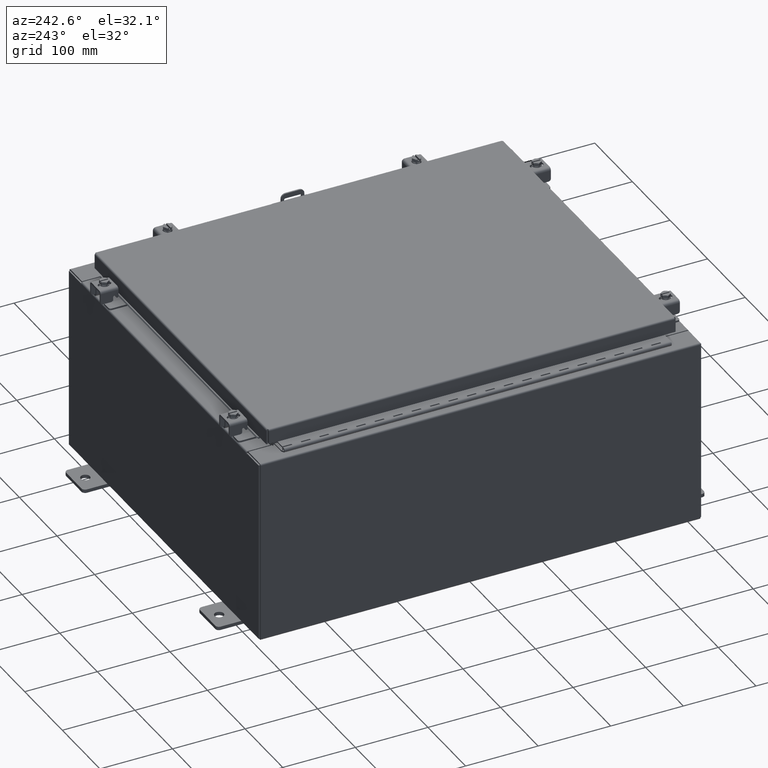
[diagram: clean part render]
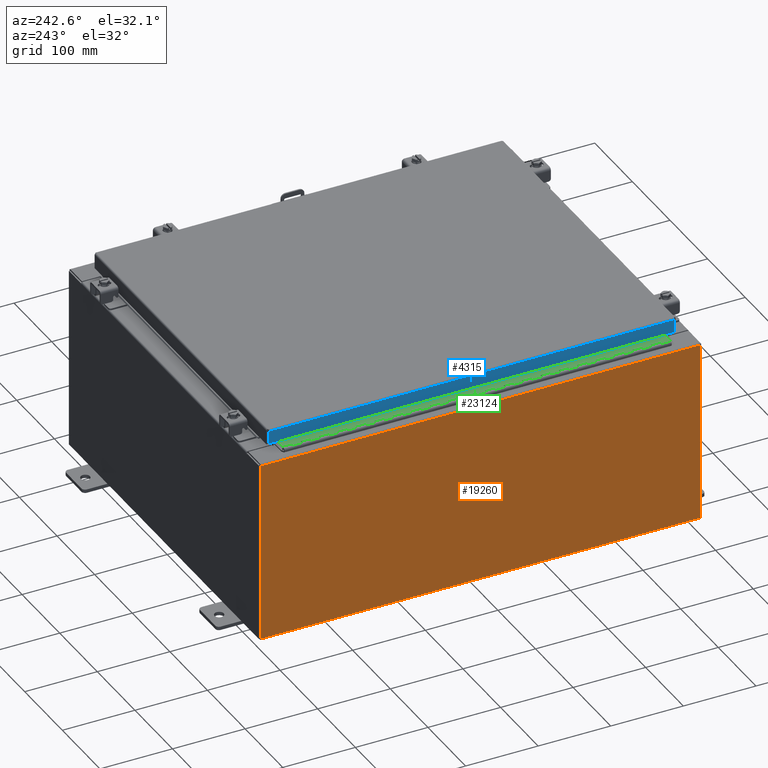
[diagram: same view with three faces highlighted in distinct colors, each labeled with its STEP entity id]
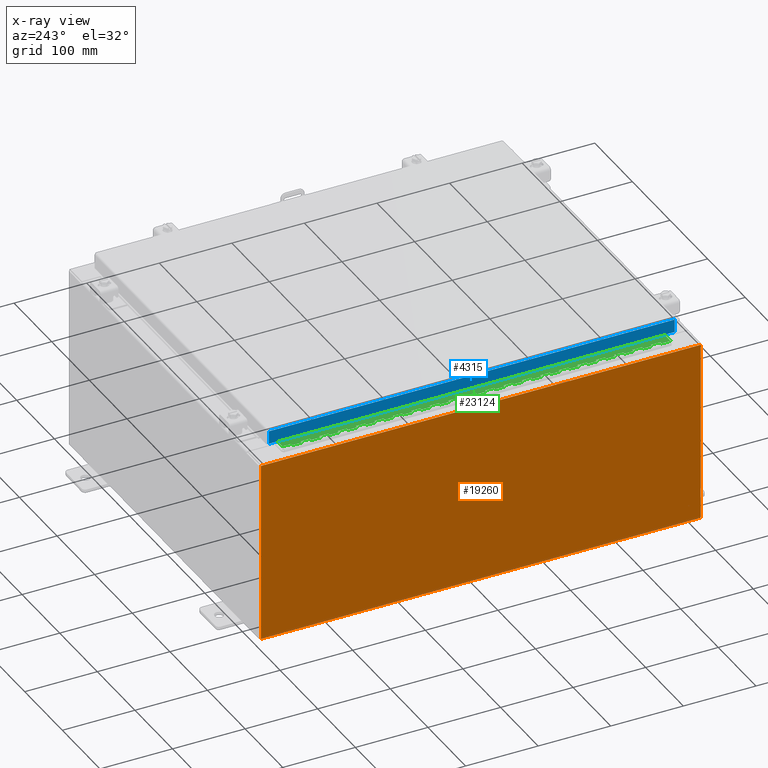
[diagram: x-ray of the same camera — body ghosted, the three highlighted faces saturated]
A machine part, auxiliary view with three faces highlighted in distinct colors.
The next image is the same camera in x-ray (body ghosted, the three faces saturated) — at least one of them is partly hidden behind the body in this view.
Their STEP definitions:

[orange] entity #19260 — the highlighted planar face has unit normal (1, 0, 0).
#1258 = CARTESIAN_POINT ( 'NONE',  ( -10.00000000000000000, -11.92530000000000000, -3.549164226462045900E-014 ) ) ;
#1472 = DIRECTION ( 'NONE',  ( -3.523082860860888200E-015, 0.0000000000000000000, 1.000000000000000000 ) ) ;
#2577 = FACE_OUTER_BOUND ( 'NONE', #23038, .T. ) ;
#2737 = VECTOR ( 'NONE', #22383, 39.37007874015748100 ) ;
#3236 = VECTOR ( 'NONE', #1472, 39.37007874015748100 ) ;
#3730 = ORIENTED_EDGE ( 'NONE', *, *, #32067, .F. ) ;
#4269 = DIRECTION ( 'NONE',  ( -0.0000000000000000000, 1.000000000000000000, -0.0000000000000000000 ) ) ;
#5770 = VERTEX_POINT ( 'NONE', #28099 ) ;
#5843 = EDGE_CURVE ( 'NONE', #5770, #23239, #14281, .T. ) ;
#6471 = VERTEX_POINT ( 'NONE', #30135 ) ;
#7602 = VECTOR ( 'NONE', #24441, 39.37007874015748100 ) ;
#11703 = EDGE_CURVE ( 'NONE', #6471, #23840, #16610, .T. ) ;
#13349 = AXIS2_PLACEMENT_3D ( 'NONE', #17112, #16675, #16569 ) ;
#13563 = ORIENTED_EDGE ( 'NONE', *, *, #11703, .T. ) ;
#13941 = ORIENTED_EDGE ( 'NONE', *, *, #16671, .T. ) ;
#14281 = LINE ( 'NONE', #25664, #7602 ) ;
#14903 = CARTESIAN_POINT ( 'NONE',  ( -10.00000000000003600, -11.92529999999999500, 9.837599999999998300 ) ) ;
#15176 = CARTESIAN_POINT ( 'NONE',  ( -10.00000000000000000, 11.92530000000000000, 0.01299999999999984300 ) ) ;
#16569 = DIRECTION ( 'NONE',  ( 3.523082860860887800E-015, 0.0000000000000000000, -1.000000000000000000 ) ) ;
#16610 = LINE ( 'NONE', #1258, #3236 ) ;
#16671 = EDGE_CURVE ( 'NONE', #23840, #5770, #22803, .T. ) ;
#16675 = DIRECTION ( 'NONE',  ( 1.000000000000000000, 0.0000000000000000000, 3.523082860860887800E-015 ) ) ;
#16786 = CARTESIAN_POINT ( 'NONE',  ( -10.00000000000000000, 11.92530000000000000, 0.01299999999999984700 ) ) ;
#16850 = PLANE ( 'NONE',  #13349 ) ;
#17112 = CARTESIAN_POINT ( 'NONE',  ( -10.00000000000000000, 0.0000000000000000000, -3.549164226462045900E-014 ) ) ;
#19260 = ADVANCED_FACE ( 'NONE', ( #2577 ), #16850, .F. ) ;
#19595 = VECTOR ( 'NONE', #4269, 39.37007874015748100 ) ;
#22383 = DIRECTION ( 'NONE',  ( 0.0000000000000000000, 1.000000000000000000, 0.0000000000000000000 ) ) ;
#22803 = LINE ( 'NONE', #23816, #2737 ) ;
#23038 = EDGE_LOOP ( 'NONE', ( #13941, #28827, #3730, #13563 ) ) ;
#23239 = VERTEX_POINT ( 'NONE', #15176 ) ;
#23816 = CARTESIAN_POINT ( 'NONE',  ( -10.00000000000003600, -11.92530000000000000, 9.837599999999998300 ) ) ;
#23840 = VERTEX_POINT ( 'NONE', #14903 ) ;
#24441 = DIRECTION ( 'NONE',  ( 3.523082860860888200E-015, 0.0000000000000000000, -1.000000000000000000 ) ) ;
#25664 = CARTESIAN_POINT ( 'NONE',  ( -10.00000000000000000, 11.92530000000000000, -3.549164226462045900E-014 ) ) ;
#27032 = LINE ( 'NONE', #16786, #19595 ) ;
#28099 = CARTESIAN_POINT ( 'NONE',  ( -10.00000000000003600, 11.92530000000000000, 9.837599999999998300 ) ) ;
#28827 = ORIENTED_EDGE ( 'NONE', *, *, #5843, .T. ) ;
#30135 = CARTESIAN_POINT ( 'NONE',  ( -10.00000000000000000, -11.92529999999999800, 0.01299999999999984700 ) ) ;
#32067 = EDGE_CURVE ( 'NONE', #6471, #23239, #27032, .T. ) ;

[blue] entity #4315 — the highlighted planar face has unit normal (1, 0, -0).
#1695 = AXIS2_PLACEMENT_3D ( 'NONE', #31860, #32344, #24528 ) ;
#2757 = EDGE_LOOP ( 'NONE', ( #9431, #4475, #16689, #14090 ) ) ;
#4105 = VERTEX_POINT ( 'NONE', #18738 ) ;
#4315 = ADVANCED_FACE ( 'NONE', ( #10847 ), #27398, .F. ) ;
#4475 = ORIENTED_EDGE ( 'NONE', *, *, #28147, .T. ) ;
#5121 = VERTEX_POINT ( 'NONE', #11246 ) ;
#5714 = CARTESIAN_POINT ( 'NONE',  ( -9.078000000000001200, -11.00515786437626700, -0.7949999999999996000 ) ) ;
#5996 = VECTOR ( 'NONE', #12946, 39.37007874015748100 ) ;
#6316 = DIRECTION ( 'NONE',  ( -3.034122441942816500E-015, 6.982962677686265900E-015, -1.000000000000000000 ) ) ;
#6682 = VECTOR ( 'NONE', #16065, 39.37007874015748100 ) ;
#6786 = LINE ( 'NONE', #10398, #5996 ) ;
#9431 = ORIENTED_EDGE ( 'NONE', *, *, #24596, .F. ) ;
#10063 = VERTEX_POINT ( 'NONE', #5714 ) ;
#10398 = CARTESIAN_POINT ( 'NONE',  ( -9.078000000000001200, -11.09400000000000100, -0.7949999999999997100 ) ) ;
#10847 = FACE_OUTER_BOUND ( 'NONE', #2757, .T. ) ;
#11246 = CARTESIAN_POINT ( 'NONE',  ( -9.078000000000001200, 11.00515786437627100, -0.7949999999999969300 ) ) ;
#12015 = LINE ( 'NONE', #25802, #25360 ) ;
#12946 = DIRECTION ( 'NONE',  ( 4.379057701015054300E-047, 1.000000000000000000, 1.231227687788112300E-016 ) ) ;
#13196 = DIRECTION ( 'NONE',  ( 3.735695558659274900E-031, -1.000000000000000000, -1.101212895818006000E-045 ) ) ;
#14090 = ORIENTED_EDGE ( 'NONE', *, *, #22340, .F. ) ;
#16065 = DIRECTION ( 'NONE',  ( -3.034122441942816500E-015, 6.982962677686265900E-015, -1.000000000000000000 ) ) ;
#16305 = CARTESIAN_POINT ( 'NONE',  ( -9.077999999999999400, -11.00515786437627100, -0.07469999999999976700 ) ) ;
#16689 = ORIENTED_EDGE ( 'NONE', *, *, #22075, .F. ) ;
#18738 = CARTESIAN_POINT ( 'NONE',  ( -9.077999999999999400, 11.00515786437626900, -0.08770000000000004200 ) ) ;
#20502 = LINE ( 'NONE', #16305, #31433 ) ;
#21005 = CARTESIAN_POINT ( 'NONE',  ( -9.077999999999999400, -11.00515786437626900, -0.08770000000000007000 ) ) ;
#22075 = EDGE_CURVE ( 'NONE', #10063, #5121, #6786, .T. ) ;
#22340 = EDGE_CURVE ( 'NONE', #22784, #10063, #20502, .T. ) ;
#22784 = VERTEX_POINT ( 'NONE', #21005 ) ;
#24528 = DIRECTION ( 'NONE',  ( -3.034122441942816500E-015, 0.0000000000000000000, -1.000000000000000000 ) ) ;
#24596 = EDGE_CURVE ( 'NONE', #4105, #22784, #12015, .T. ) ;
#25360 = VECTOR ( 'NONE', #13196, 39.37007874015748100 ) ;
#25802 = CARTESIAN_POINT ( 'NONE',  ( -9.077999999999999400, -11.09400000000000100, -0.08770000000000004200 ) ) ;
#25923 = LINE ( 'NONE', #28531, #6682 ) ;
#27398 = PLANE ( 'NONE',  #1695 ) ;
#28147 = EDGE_CURVE ( 'NONE', #4105, #5121, #25923, .T. ) ;
#28531 = CARTESIAN_POINT ( 'NONE',  ( -9.077999999999999400, 11.00515786437626700, 1.046531838129534400E-013 ) ) ;
#31433 = VECTOR ( 'NONE', #6316, 39.37007874015748100 ) ;
#31860 = CARTESIAN_POINT ( 'NONE',  ( -9.077999999999999400, -3.391264428150889200E-030, 2.780457718396847000E-014 ) ) ;
#32344 = DIRECTION ( 'NONE',  ( 1.000000000000000000, 3.735695558659274400E-031, -3.034122441942816500E-015 ) ) ;

[green] entity #23124 — the highlighted planar face has unit normal (-0, -0, 1).
#37 = CARTESIAN_POINT ( 'NONE',  ( -0.6869999999999978300, 0.6754999999999996600, -8.500000000000000000 ) ) ;
#50 = DIRECTION ( 'NONE',  ( 0.0000000000000000000, -0.0000000000000000000, -1.000000000000000000 ) ) ;
#68 = LINE ( 'NONE', #32048, #12699 ) ;
#144 = ORIENTED_EDGE ( 'NONE', *, *, #31276, .F. ) ;
#206 = VERTEX_POINT ( 'NONE', #7646 ) ;
#235 = CARTESIAN_POINT ( 'NONE',  ( -0.6869999999999982800, 0.5504999999999997700, -7.499999999999999100 ) ) ;
#246 = LINE ( 'NONE', #2981, #12887 ) ;
#406 = ORIENTED_EDGE ( 'NONE', *, *, #29526, .F. ) ;
#410 = VECTOR ( 'NONE', #4825, 39.37007874015748100 ) ;
#422 = VERTEX_POINT ( 'NONE', #27371 ) ;
#449 = VECTOR ( 'NONE', #3675, 39.37007874015748100 ) ;
#467 = ORIENTED_EDGE ( 'NONE', *, *, #6371, .T. ) ;
#476 = LINE ( 'NONE', #5352, #26410 ) ;
#477 = DIRECTION ( 'NONE',  ( -3.389037039080723100E-015, -1.000000000000000000, 0.0000000000000000000 ) ) ;
#478 = VECTOR ( 'NONE', #13331, 39.37007874015748100 ) ;
#505 = CARTESIAN_POINT ( 'NONE',  ( -0.6869999999999973900, 0.8004999999999995500, -6.499999999999999100 ) ) ;
#549 = DIRECTION ( 'NONE',  ( 0.0000000000000000000, -0.0000000000000000000, -1.000000000000000000 ) ) ;
#553 = DIRECTION ( 'NONE',  ( 3.389037039080723100E-015, 1.000000000000000000, -0.0000000000000000000 ) ) ;
#587 = CARTESIAN_POINT ( 'NONE',  ( -0.6869999999999982800, 0.5504999999999997700, -4.500000000000000000 ) ) ;
#681 = CARTESIAN_POINT ( 'NONE',  ( -0.6869999999999982800, 0.5504999999999997700, -14.99999999999999800 ) ) ;
#741 = VECTOR ( 'NONE', #31290, 39.37007874015748100 ) ;
#752 = EDGE_CURVE ( 'NONE', #6285, #4718, #5486, .T. ) ;
#798 = DIRECTION ( 'NONE',  ( -3.389037039080723100E-015, -1.000000000000000000, 0.0000000000000000000 ) ) ;
#836 = VERTEX_POINT ( 'NONE', #8326 ) ;
#848 = ORIENTED_EDGE ( 'NONE', *, *, #20046, .F. ) ;
#856 = ORIENTED_EDGE ( 'NONE', *, *, #22255, .F. ) ;
#894 = VERTEX_POINT ( 'NONE', #5066 ) ;
#941 = EDGE_CURVE ( 'NONE', #18381, #19166, #6649, .T. ) ;
#942 = DIRECTION ( 'NONE',  ( 0.0000000000000000000, -0.0000000000000000000, -1.000000000000000000 ) ) ;
#983 = EDGE_CURVE ( 'NONE', #13320, #16870, #24336, .T. ) ;
#1016 = LINE ( 'NONE', #11303, #20295 ) ;
#1033 = DIRECTION ( 'NONE',  ( 0.0000000000000000000, 0.0000000000000000000, 1.000000000000000000 ) ) ;
#1039 = LINE ( 'NONE', #8945, #32024 ) ;
#1063 = LINE ( 'NONE', #13607, #26230 ) ;
#1253 = LINE ( 'NONE', #13447, #25317 ) ;
#1260 = LINE ( 'NONE', #8252, #478 ) ;
#1264 = CARTESIAN_POINT ( 'NONE',  ( -0.6869999999999978300, 0.6754999999999996600, -11.50000000000000000 ) ) ;
#1435 = VECTOR ( 'NONE', #17290, 39.37007874015748100 ) ;
#1449 = ORIENTED_EDGE ( 'NONE', *, *, #27880, .F. ) ;
#1489 = CARTESIAN_POINT ( 'NONE',  ( -0.6869999999999982800, 0.5504999999999997700, -1.499999999999999800 ) ) ;
#1490 = VECTOR ( 'NONE', #1832, 39.37007874015748100 ) ;
#1540 = VECTOR ( 'NONE', #31229, 39.37007874015748100 ) ;
#1562 = CARTESIAN_POINT ( 'NONE',  ( -0.6869999999999978300, 0.6754999999999996600, -21.00000000000000000 ) ) ;
#1709 = VECTOR ( 'NONE', #16765, 39.37007874015748100 ) ;
#1826 = EDGE_CURVE ( 'NONE', #422, #2860, #6580, .T. ) ;
#1827 = EDGE_CURVE ( 'NONE', #206, #11457, #13268, .T. ) ;
#1832 = DIRECTION ( 'NONE',  ( -3.389037039080723100E-015, -1.000000000000000000, 0.0000000000000000000 ) ) ;
#1923 = CARTESIAN_POINT ( 'NONE',  ( -0.6869999999999978300, 0.6754999999999996600, -21.00000000000000000 ) ) ;
#1970 = ORIENTED_EDGE ( 'NONE', *, *, #3272, .F. ) ;
#2035 = CARTESIAN_POINT ( 'NONE',  ( -0.6869999999999973900, 0.8004999999999995500, -4.500000000000000000 ) ) ;
#2043 = VECTOR ( 'NONE', #27311, 39.37007874015748100 ) ;
#2050 = CARTESIAN_POINT ( 'NONE',  ( -0.6869999999999982800, 0.5504999999999997700, -15.50000000000000000 ) ) ;
#2088 = ORIENTED_EDGE ( 'NONE', *, *, #20352, .F. ) ;
#2124 = EDGE_CURVE ( 'NONE', #22963, #27434, #12088, .T. ) ;
#2220 = CARTESIAN_POINT ( 'NONE',  ( -0.6869999999999978300, 0.6754999999999996600, -9.500000000000000000 ) ) ;
#2223 = LINE ( 'NONE', #3769, #14802 ) ;
#2255 = CARTESIAN_POINT ( 'NONE',  ( -0.6869999999999978300, 0.6754999999999996600, -21.00000000000000000 ) ) ;
#2306 = DIRECTION ( 'NONE',  ( 3.369016658928398200E-015, 1.000000000000000000, 0.0000000000000000000 ) ) ;
#2349 = LINE ( 'NONE', #12903, #8247 ) ;
#2360 = CARTESIAN_POINT ( 'NONE',  ( -0.6869999999999982800, 0.5504999999999997700, -19.50000000000000000 ) ) ;
#2408 = ORIENTED_EDGE ( 'NONE', *, *, #23743, .F. ) ;
#2483 = LINE ( 'NONE', #14971, #21742 ) ;
#2540 = DIRECTION ( 'NONE',  ( -3.389037039080723100E-015, -1.000000000000000000, 0.0000000000000000000 ) ) ;
#2668 = VECTOR ( 'NONE', #18105, 39.37007874015748100 ) ;
#2683 = VERTEX_POINT ( 'NONE', #2220 ) ;
#2697 = DIRECTION ( 'NONE',  ( 3.369016658928398200E-015, 1.000000000000000000, 0.0000000000000000000 ) ) ;
#2749 = EDGE_CURVE ( 'NONE', #29750, #13653, #28186, .T. ) ;
#2814 = VERTEX_POINT ( 'NONE', #37 ) ;
#2860 = VERTEX_POINT ( 'NONE', #6668 ) ;
#2981 = CARTESIAN_POINT ( 'NONE',  ( -0.6870000000000022800, -0.6245000000000003900, 0.0000000000000000000 ) ) ;
#2990 = DIRECTION ( 'NONE',  ( -3.389037039080723100E-015, -1.000000000000000000, 0.0000000000000000000 ) ) ;
#3047 = DIRECTION ( 'NONE',  ( 0.0000000000000000000, -0.0000000000000000000, -1.000000000000000000 ) ) ;
#3049 = CARTESIAN_POINT ( 'NONE',  ( -0.6869999999999978300, 0.6754999999999996600, -17.00000000000000000 ) ) ;
#3116 = DIRECTION ( 'NONE',  ( 0.0000000000000000000, -0.0000000000000000000, -1.000000000000000000 ) ) ;
#3220 = CARTESIAN_POINT ( 'NONE',  ( -0.6869999999999973900, 0.8004999999999995500, -16.00000000000000000 ) ) ;
#3272 = EDGE_CURVE ( 'NONE', #9649, #4046, #20724, .T. ) ;
#3306 = CARTESIAN_POINT ( 'NONE',  ( -0.6869999999999973900, 0.8004999999999995500, -12.49999999999999800 ) ) ;
#3339 = VERTEX_POINT ( 'NONE', #22339 ) ;
#3348 = CARTESIAN_POINT ( 'NONE',  ( -0.6869999999999978300, 0.6754999999999996600, -21.00000000000000000 ) ) ;
#3369 = ORIENTED_EDGE ( 'NONE', *, *, #11308, .T. ) ;
#3447 = VERTEX_POINT ( 'NONE', #25537 ) ;
#3485 = CARTESIAN_POINT ( 'NONE',  ( -0.6869999999999978300, 0.6754999999999996600, -21.00000000000000000 ) ) ;
#3525 = LINE ( 'NONE', #22465, #16100 ) ;
#3626 = VECTOR ( 'NONE', #30694, 39.37007874015748100 ) ;
#3675 = DIRECTION ( 'NONE',  ( 3.389037039080723100E-015, 1.000000000000000000, -0.0000000000000000000 ) ) ;
#3706 = CARTESIAN_POINT ( 'NONE',  ( -0.6869999999999982800, 0.5504999999999997700, -12.49999999999999800 ) ) ;
#3708 = EDGE_CURVE ( 'NONE', #15204, #8475, #2223, .T. ) ;
#3769 = CARTESIAN_POINT ( 'NONE',  ( -0.6869999999999982800, 0.5504999999999997700, -17.50000000000000000 ) ) ;
#3782 = CARTESIAN_POINT ( 'NONE',  ( -0.6869999999999978300, 0.6754999999999996600, -19.50000000000000000 ) ) ;
#3809 = DIRECTION ( 'NONE',  ( 0.0000000000000000000, -0.0000000000000000000, -1.000000000000000000 ) ) ;
#3873 = DIRECTION ( 'NONE',  ( -3.389037039080723100E-015, -1.000000000000000000, 0.0000000000000000000 ) ) ;
#3876 = LINE ( 'NONE', #15714, #15668 ) ;
#3938 = VECTOR ( 'NONE', #24769, 39.37007874015748100 ) ;
#3972 = EDGE_CURVE ( 'NONE', #29374, #30533, #15200, .T. ) ;
#3999 = CARTESIAN_POINT ( 'NONE',  ( -0.6869999999999973900, 0.8004999999999995500, -20.50000000000000400 ) ) ;
#4046 = VERTEX_POINT ( 'NONE', #681 ) ;
#4092 = VECTOR ( 'NONE', #19156, 39.37007874015748100 ) ;
#4202 = CARTESIAN_POINT ( 'NONE',  ( -0.6869999999999973900, 0.8004999999999995500, -6.000000000000000900 ) ) ;
#4461 = DIRECTION ( 'NONE',  ( 3.389037039080723100E-015, 1.000000000000000000, -0.0000000000000000000 ) ) ;
#4464 = LINE ( 'NONE', #27440, #30314 ) ;
#4495 = LINE ( 'NONE', #22715, #28780 ) ;
#4497 = ORIENTED_EDGE ( 'NONE', *, *, #3972, .T. ) ;
#4617 = EDGE_CURVE ( 'NONE', #894, #14657, #9643, .T. ) ;
#4621 = VECTOR ( 'NONE', #11704, 39.37007874015748100 ) ;
#4664 = LINE ( 'NONE', #32286, #29722 ) ;
#4695 = LINE ( 'NONE', #8840, #17244 ) ;
#4712 = VECTOR ( 'NONE', #14026, 39.37007874015748100 ) ;
#4718 = VERTEX_POINT ( 'NONE', #17267 ) ;
#4825 = DIRECTION ( 'NONE',  ( 0.0000000000000000000, 0.0000000000000000000, 1.000000000000000000 ) ) ;
#4965 = LINE ( 'NONE', #12333, #17509 ) ;
#4985 = FACE_OUTER_BOUND ( 'NONE', #13016, .T. ) ;
#4988 = DIRECTION ( 'NONE',  ( -3.389037039080723100E-015, -1.000000000000000000, 0.0000000000000000000 ) ) ;
#5066 = CARTESIAN_POINT ( 'NONE',  ( -0.6869999999999978300, 0.6754999999999996600, -0.5000000000000000000 ) ) ;
#5096 = DIRECTION ( 'NONE',  ( 3.389037039080723100E-015, 1.000000000000000000, -0.0000000000000000000 ) ) ;
#5207 = VERTEX_POINT ( 'NONE', #16864 ) ;
#5352 = CARTESIAN_POINT ( 'NONE',  ( -0.6869999999999973900, 0.8004999999999995500, -2.000000000000000000 ) ) ;
#5378 = EDGE_CURVE ( 'NONE', #8391, #26490, #8415, .T. ) ;
#5388 = VERTEX_POINT ( 'NONE', #21255 ) ;
#5447 = ORIENTED_EDGE ( 'NONE', *, *, #29372, .T. ) ;
#5486 = LINE ( 'NONE', #13667, #4712 ) ;
#5606 = EDGE_CURVE ( 'NONE', #19427, #6584, #20563, .T. ) ;
#5625 = LINE ( 'NONE', #1923, #31458 ) ;
#5635 = VECTOR ( 'NONE', #2990, 39.37007874015748100 ) ;
#5637 = CARTESIAN_POINT ( 'NONE',  ( -0.6869999999999973900, 0.8004999999999995500, -12.99999999999999800 ) ) ;
#5742 = ORIENTED_EDGE ( 'NONE', *, *, #22296, .F. ) ;
#5757 = DIRECTION ( 'NONE',  ( 3.389037039080723100E-015, 1.000000000000000000, -0.0000000000000000000 ) ) ;
#5995 = CARTESIAN_POINT ( 'NONE',  ( -0.6869999999999978300, 0.6754999999999996600, -15.50000000000000000 ) ) ;
#6008 = DIRECTION ( 'NONE',  ( 3.389037039080723100E-015, 1.000000000000000000, -0.0000000000000000000 ) ) ;
#6069 = EDGE_CURVE ( 'NONE', #22185, #23679, #1260, .T. ) ;
#6103 = EDGE_CURVE ( 'NONE', #2683, #19698, #25660, .T. ) ;
#6285 = VERTEX_POINT ( 'NONE', #7009 ) ;
#6295 = LINE ( 'NONE', #15214, #18860 ) ;
#6351 = ORIENTED_EDGE ( 'NONE', *, *, #30587, .T. ) ;
#6365 = EDGE_CURVE ( 'NONE', #30266, #27434, #68, .T. ) ;
#6371 = EDGE_CURVE ( 'NONE', #6285, #22285, #26027, .T. ) ;
#6404 = EDGE_CURVE ( 'NONE', #4046, #3339, #25255, .T. ) ;
#6408 = DIRECTION ( 'NONE',  ( 0.0000000000000000000, -0.0000000000000000000, -1.000000000000000000 ) ) ;
#6441 = EDGE_CURVE ( 'NONE', #13096, #7621, #17778, .T. ) ;
#6445 = EDGE_CURVE ( 'NONE', #26397, #19276, #31064, .T. ) ;
#6580 = LINE ( 'NONE', #17081, #1435 ) ;
#6584 = VERTEX_POINT ( 'NONE', #28138 ) ;
#6586 = VECTOR ( 'NONE', #10779, 39.37007874015748100 ) ;
#6649 = LINE ( 'NONE', #22274, #31699 ) ;
#6668 = CARTESIAN_POINT ( 'NONE',  ( -0.6869999999999978300, 0.6754999999999996600, -2.999999999999999600 ) ) ;
#6769 = CARTESIAN_POINT ( 'NONE',  ( -0.6869999999999978300, 0.6754999999999996600, -20.00000000000000000 ) ) ;
#6787 = EDGE_CURVE ( 'NONE', #5207, #14731, #11881, .T. ) ;
#6803 = CARTESIAN_POINT ( 'NONE',  ( -0.6869999999999973900, 0.8004999999999995500, -0.5000000000000000000 ) ) ;
#6844 = ORIENTED_EDGE ( 'NONE', *, *, #11586, .F. ) ;
#6894 = CARTESIAN_POINT ( 'NONE',  ( -0.6869999999999982800, 0.5504999999999997700, -5.500000000000000000 ) ) ;
#6941 = VECTOR ( 'NONE', #28917, 39.37007874015748100 ) ;
#7009 = CARTESIAN_POINT ( 'NONE',  ( -0.6869999999999998300, 0.07549999999999991400, -21.00000000000000000 ) ) ;
#7190 = DIRECTION ( 'NONE',  ( 0.0000000000000000000, -0.0000000000000000000, -1.000000000000000000 ) ) ;
#7233 = CARTESIAN_POINT ( 'NONE',  ( -0.6869999999999982800, 0.5504999999999997700, -3.500000000000000000 ) ) ;
#7241 = CARTESIAN_POINT ( 'NONE',  ( -0.6869999999999973900, 0.8004999999999995500, -17.50000000000000000 ) ) ;
#7402 = ORIENTED_EDGE ( 'NONE', *, *, #29347, .T. ) ;
#7416 = CARTESIAN_POINT ( 'NONE',  ( -0.6869999999999978300, 0.6754999999999996600, -3.500000000000000000 ) ) ;
#7429 = VECTOR ( 'NONE', #30457, 39.37007874015748100 ) ;
#7473 = DIRECTION ( 'NONE',  ( -3.389037039080723100E-015, -1.000000000000000000, 0.0000000000000000000 ) ) ;
#7503 = CARTESIAN_POINT ( 'NONE',  ( -0.6869999999999978300, 0.6754999999999996600, -10.00000000000000000 ) ) ;
#7621 = VERTEX_POINT ( 'NONE', #7503 ) ;
#7646 = CARTESIAN_POINT ( 'NONE',  ( -0.6869999999999982800, 0.5504999999999997700, -1.000000000000000000 ) ) ;
#7688 = CARTESIAN_POINT ( 'NONE',  ( -0.6869999999999973900, 0.8004999999999995500, -3.500000000000000000 ) ) ;
#7800 = VECTOR ( 'NONE', #32340, 39.37007874015748100 ) ;
#7839 = ORIENTED_EDGE ( 'NONE', *, *, #22250, .T. ) ;
#8084 = EDGE_CURVE ( 'NONE', #16870, #22185, #15703, .T. ) ;
#8247 = VECTOR ( 'NONE', #17819, 39.37007874015748100 ) ;
#8252 = CARTESIAN_POINT ( 'NONE',  ( -0.6869999999999973900, 0.8004999999999995500, -5.000000000000000000 ) ) ;
#8326 = CARTESIAN_POINT ( 'NONE',  ( -0.6869999999999978300, 0.6754999999999996600, -13.50000000000000000 ) ) ;
#8333 = VECTOR ( 'NONE', #942, 39.37007874015748100 ) ;
#8376 = LINE ( 'NONE', #14312, #15075 ) ;
#8391 = VERTEX_POINT ( 'NONE', #17584 ) ;
#8415 = LINE ( 'NONE', #17411, #1709 ) ;
#8462 = CARTESIAN_POINT ( 'NONE',  ( -0.6869999999999982800, 0.5504999999999997700, -12.49999999999999800 ) ) ;
#8475 = VERTEX_POINT ( 'NONE', #12336 ) ;
#8495 = VECTOR ( 'NONE', #23804, 39.37007874015748100 ) ;
#8510 = EDGE_CURVE ( 'NONE', #19724, #5207, #9763, .T. ) ;
#8566 = DIRECTION ( 'NONE',  ( -3.389037039080723100E-015, -1.000000000000000000, 0.0000000000000000000 ) ) ;
#8576 = CARTESIAN_POINT ( 'NONE',  ( -0.6869999999999982800, 0.5504999999999997700, -17.50000000000000000 ) ) ;
#8625 = VERTEX_POINT ( 'NONE', #6769 ) ;
#8651 = VECTOR ( 'NONE', #21595, 39.37007874015748100 ) ;
#8676 = ORIENTED_EDGE ( 'NONE', *, *, #2124, .F. ) ;
#8681 = LINE ( 'NONE', #24795, #27128 ) ;
#8705 = CARTESIAN_POINT ( 'NONE',  ( -0.6869999999999982800, 0.5504999999999997700, -8.500000000000000000 ) ) ;
#8717 = VECTOR ( 'NONE', #18391, 39.37007874015748100 ) ;
#8801 = VECTOR ( 'NONE', #26840, 39.37007874015748100 ) ;
#8815 = EDGE_CURVE ( 'NONE', #32140, #23572, #26663, .T. ) ;
#8840 = CARTESIAN_POINT ( 'NONE',  ( -0.6869999999999973900, 0.8004999999999995500, -16.50000000000000000 ) ) ;
#8855 = EDGE_CURVE ( 'NONE', #3447, #29421, #25134, .T. ) ;
#8899 = ORIENTED_EDGE ( 'NONE', *, *, #5606, .F. ) ;
#8945 = CARTESIAN_POINT ( 'NONE',  ( -0.6869999999999982800, 0.5504999999999997700, -6.499999999999999100 ) ) ;
#8958 = VECTOR ( 'NONE', #14763, 39.37007874015748100 ) ;
#8961 = CARTESIAN_POINT ( 'NONE',  ( -0.6869999999999982800, 0.5504999999999997700, -17.00000000000000000 ) ) ;
#8975 = ORIENTED_EDGE ( 'NONE', *, *, #16661, .F. ) ;
#8994 = ORIENTED_EDGE ( 'NONE', *, *, #5378, .T. ) ;
#9175 = VERTEX_POINT ( 'NONE', #24551 ) ;
#9201 = EDGE_CURVE ( 'NONE', #836, #29747, #20691, .T. ) ;
#9278 = ORIENTED_EDGE ( 'NONE', *, *, #21113, .F. ) ;
#9517 = DIRECTION ( 'NONE',  ( 0.0000000000000000000, 0.0000000000000000000, 1.000000000000000000 ) ) ;
#9633 = DIRECTION ( 'NONE',  ( 3.389037039080723100E-015, 1.000000000000000000, -0.0000000000000000000 ) ) ;
#9643 = LINE ( 'NONE', #6803, #22233 ) ;
#9649 = VERTEX_POINT ( 'NONE', #14322 ) ;
#9763 = LINE ( 'NONE', #10545, #8958 ) ;
#9858 = ORIENTED_EDGE ( 'NONE', *, *, #14508, .F. ) ;
#9898 = DIRECTION ( 'NONE',  ( 3.389037039080723100E-015, 1.000000000000000000, -0.0000000000000000000 ) ) ;
#9978 = LINE ( 'NONE', #1562, #4092 ) ;
#10170 = EDGE_CURVE ( 'NONE', #19231, #11017, #26494, .T. ) ;
#10214 = CARTESIAN_POINT ( 'NONE',  ( -0.6869999999999978300, 0.6754999999999996600, -14.00000000000000000 ) ) ;
#10336 = CARTESIAN_POINT ( 'NONE',  ( -0.6869999999999973900, 0.8004999999999995500, -19.00000000000000000 ) ) ;
#10420 = VECTOR ( 'NONE', #13503, 39.37007874015748100 ) ;
#10457 = CARTESIAN_POINT ( 'NONE',  ( -0.6869999999999982800, 0.5504999999999997700, -4.500000000000000000 ) ) ;
#10459 = DIRECTION ( 'NONE',  ( 0.0000000000000000000, 0.0000000000000000000, 1.000000000000000000 ) ) ;
#10492 = CARTESIAN_POINT ( 'NONE',  ( -0.6869999999999978300, 0.6754999999999996600, -21.00000000000000000 ) ) ;
#10536 = VECTOR ( 'NONE', #18122, 39.37007874015748100 ) ;
#10539 = CARTESIAN_POINT ( 'NONE',  ( -0.6869999999999982800, 0.5504999999999997700, -11.50000000000000000 ) ) ;
#10545 = CARTESIAN_POINT ( 'NONE',  ( -0.6869999999999982800, 0.5504999999999997700, -8.500000000000000000 ) ) ;
#10614 = CARTESIAN_POINT ( 'NONE',  ( -0.6869999999999978300, 0.6754999999999996600, -1.000000000000000000 ) ) ;
#10657 = EDGE_CURVE ( 'NONE', #28671, #29575, #13167, .T. ) ;
#10732 = VERTEX_POINT ( 'NONE', #31943 ) ;
#10759 = ORIENTED_EDGE ( 'NONE', *, *, #20490, .F. ) ;
#10779 = DIRECTION ( 'NONE',  ( 0.0000000000000000000, -0.0000000000000000000, -1.000000000000000000 ) ) ;
#10799 = CARTESIAN_POINT ( 'NONE',  ( -0.6869999999999973900, 0.8004999999999995500, -9.500000000000000000 ) ) ;
#10942 = CARTESIAN_POINT ( 'NONE',  ( -0.6869999999999982800, 0.5504999999999997700, -14.00000000000000000 ) ) ;
#10966 = CARTESIAN_POINT ( 'NONE',  ( -0.6869999999999973900, 0.8004999999999995500, -14.00000000000000000 ) ) ;
#10969 = VECTOR ( 'NONE', #798, 39.37007874015748100 ) ;
#10986 = CARTESIAN_POINT ( 'NONE',  ( -0.6869999999999973900, 0.8004999999999995500, -11.99999999999999800 ) ) ;
#11017 = VERTEX_POINT ( 'NONE', #24112 ) ;
#11040 = EDGE_CURVE ( 'NONE', #836, #16677, #4495, .T. ) ;
#11080 = CARTESIAN_POINT ( 'NONE',  ( -0.6869999999999978300, 0.6754999999999996600, -21.00000000000000000 ) ) ;
#11108 = LINE ( 'NONE', #30950, #14623 ) ;
#11150 = DIRECTION ( 'NONE',  ( -3.389037039080723100E-015, -1.000000000000000000, 0.0000000000000000000 ) ) ;
#11184 = CARTESIAN_POINT ( 'NONE',  ( -0.6869999999999973900, 0.8004999999999995500, -15.50000000000000000 ) ) ;
#11191 = DIRECTION ( 'NONE',  ( 0.0000000000000000000, -0.0000000000000000000, -1.000000000000000000 ) ) ;
#11269 = EDGE_CURVE ( 'NONE', #20931, #22963, #2483, .T. ) ;
#11286 = CARTESIAN_POINT ( 'NONE',  ( -0.6869999999999978300, 0.6754999999999996600, -11.99999999999999800 ) ) ;
#11303 = CARTESIAN_POINT ( 'NONE',  ( -0.6869999999999978300, 0.6754999999999996600, -21.00000000000000000 ) ) ;
#11308 = EDGE_CURVE ( 'NONE', #13320, #28355, #8376, .T. ) ;
#11393 = VERTEX_POINT ( 'NONE', #11730 ) ;
#11434 = LINE ( 'NONE', #11184, #17326 ) ;
#11457 = VERTEX_POINT ( 'NONE', #10614 ) ;
#11532 = VECTOR ( 'NONE', #553, 39.37007874015748100 ) ;
#11586 = EDGE_CURVE ( 'NONE', #10732, #30533, #476, .T. ) ;
#11633 = CARTESIAN_POINT ( 'NONE',  ( -0.6869999999999982800, 0.5504999999999997700, -16.50000000000000000 ) ) ;
#11704 = DIRECTION ( 'NONE',  ( 3.389037039080723100E-015, 1.000000000000000000, -0.0000000000000000000 ) ) ;
#11730 = CARTESIAN_POINT ( 'NONE',  ( -0.6869999999999982800, 0.5504999999999997700, -10.00000000000000000 ) ) ;
#11731 = ORIENTED_EDGE ( 'NONE', *, *, #8815, .F. ) ;
#11881 = LINE ( 'NONE', #23800, #12672 ) ;
#11901 = CARTESIAN_POINT ( 'NONE',  ( -0.6869999999999982800, 0.5504999999999997700, -7.000000000000000000 ) ) ;
#11970 = CARTESIAN_POINT ( 'NONE',  ( -0.6869999999999978300, 0.6754999999999996600, -1.499999999999999800 ) ) ;
#11973 = CARTESIAN_POINT ( 'NONE',  ( -0.6869999999999978300, 0.6754999999999996600, -5.000000000000000000 ) ) ;
#12066 = CARTESIAN_POINT ( 'NONE',  ( -0.6869999999999973900, 0.8004999999999995500, -11.00000000000000000 ) ) ;
#12088 = LINE ( 'NONE', #12066, #4621 ) ;
#12131 = CARTESIAN_POINT ( 'NONE',  ( -0.6869999999999982800, 0.5504999999999997700, -20.50000000000000400 ) ) ;
#12333 = CARTESIAN_POINT ( 'NONE',  ( -0.6869999999999973900, 0.8004999999999995500, -20.00000000000000000 ) ) ;
#12336 = CARTESIAN_POINT ( 'NONE',  ( -0.6869999999999982800, 0.5504999999999997700, -17.99999999999999600 ) ) ;
#12337 = PLANE ( 'NONE',  #20174 ) ;
#12393 = CARTESIAN_POINT ( 'NONE',  ( -0.6869999999999973900, 0.8004999999999995500, -19.50000000000000000 ) ) ;
#12531 = CARTESIAN_POINT ( 'NONE',  ( -0.6869999999999982800, 0.5504999999999997700, -2.500000000000000000 ) ) ;
#12536 = CARTESIAN_POINT ( 'NONE',  ( -0.6869999999999978300, 0.6754999999999996600, -7.499999999999999100 ) ) ;
#12572 = VECTOR ( 'NONE', #30599, 39.37007874015748100 ) ;
#12621 = ORIENTED_EDGE ( 'NONE', *, *, #10170, .F. ) ;
#12672 = VECTOR ( 'NONE', #23795, 39.37007874015748100 ) ;
#12699 = VECTOR ( 'NONE', #15352, 39.37007874015748100 ) ;
#12783 = LINE ( 'NONE', #17653, #31918 ) ;
#12860 = ORIENTED_EDGE ( 'NONE', *, *, #18715, .F. ) ;
#12875 = ORIENTED_EDGE ( 'NONE', *, *, #15888, .F. ) ;
#12887 = VECTOR ( 'NONE', #2697, 39.37007874015748100 ) ;
#12903 = CARTESIAN_POINT ( 'NONE',  ( -0.6869999999999973900, 0.8004999999999995500, -8.500000000000000000 ) ) ;
#12906 = LINE ( 'NONE', #3485, #25464 ) ;
#13005 = ORIENTED_EDGE ( 'NONE', *, *, #6069, .F. ) ;
#13016 = EDGE_LOOP ( 'NONE', ( #29940, #467, #15864, #29681, #6351, #24710, #14185, #2088, #30552, #27632, #856, #1449, #28006, #2408, #19168, #22323, #8994, #406, #19190, #25693, #14609, #27172, #26195, #20509, #17626, #19992, #1970, #23623, #7402, #23379, #28305, #22513, #24255, #23818, #15681, #17569, #27374, #15381, #8899, #16845, #21364, #8676, #17356, #22334, #30802, #9858, #16165, #26839, #21374, #27209, #20181, #144, #25731, #25359, #24984, #848, #5447, #8975, #12875, #15748, #7839, #12621, #18457, #22797, #27862, #13005, #31018, #25990, #3369, #5742, #10759, #12860, #15173, #17436, #19533, #21476, #4497, #6844, #9278, #11731, #14362, #16324, #18298, #20630, #22681, #26913 ) ) ;
#13096 = VERTEX_POINT ( 'NONE', #20212 ) ;
#13167 = LINE ( 'NONE', #3706, #21382 ) ;
#13268 = LINE ( 'NONE', #17036, #19146 ) ;
#13306 = LINE ( 'NONE', #17676, #25855 ) ;
#13320 = VERTEX_POINT ( 'NONE', #29668 ) ;
#13331 = DIRECTION ( 'NONE',  ( 3.389037039080723100E-015, 1.000000000000000000, -0.0000000000000000000 ) ) ;
#13447 = CARTESIAN_POINT ( 'NONE',  ( -0.6869999999999982800, 0.5504999999999997700, -1.499999999999999800 ) ) ;
#13486 = DIRECTION ( 'NONE',  ( 0.0000000000000000000, 0.0000000000000000000, 1.000000000000000000 ) ) ;
#13494 = CARTESIAN_POINT ( 'NONE',  ( -0.6869999999999982800, 0.5504999999999997700, -20.50000000000000400 ) ) ;
#13503 = DIRECTION ( 'NONE',  ( 3.389037039080723100E-015, 1.000000000000000000, -0.0000000000000000000 ) ) ;
#13517 = VECTOR ( 'NONE', #11150, 39.37007874015748100 ) ;
#13607 = CARTESIAN_POINT ( 'NONE',  ( -0.6869999999999973900, 0.8004999999999995500, -10.00000000000000000 ) ) ;
#13653 = VERTEX_POINT ( 'NONE', #15029 ) ;
#13667 = CARTESIAN_POINT ( 'NONE',  ( -0.6869999999999998300, 0.07549999999999991400, -21.00000000000000000 ) ) ;
#13686 = DIRECTION ( 'NONE',  ( -3.389037039080723100E-015, -1.000000000000000000, 0.0000000000000000000 ) ) ;
#13835 = LINE ( 'NONE', #23683, #449 ) ;
#13850 = VERTEX_POINT ( 'NONE', #6894 ) ;
#13973 = DIRECTION ( 'NONE',  ( 0.0000000000000000000, -0.0000000000000000000, -1.000000000000000000 ) ) ;
#14026 = DIRECTION ( 'NONE',  ( 0.0000000000000000000, 0.0000000000000000000, 1.000000000000000000 ) ) ;
#14035 = VECTOR ( 'NONE', #19613, 39.37007874015748100 ) ;
#14185 = ORIENTED_EDGE ( 'NONE', *, *, #30576, .F. ) ;
#14202 = EDGE_CURVE ( 'NONE', #17668, #9649, #3876, .T. ) ;
#14312 = CARTESIAN_POINT ( 'NONE',  ( -0.6869999999999978300, 0.6754999999999996600, -21.00000000000000000 ) ) ;
#14322 = CARTESIAN_POINT ( 'NONE',  ( -0.6869999999999982800, 0.5504999999999997700, -14.49999999999999800 ) ) ;
#14362 = ORIENTED_EDGE ( 'NONE', *, *, #25520, .T. ) ;
#14401 = LINE ( 'NONE', #26427, #6941 ) ;
#14450 = DIRECTION ( 'NONE',  ( 0.0000000000000000000, 0.0000000000000000000, 1.000000000000000000 ) ) ;
#14508 = EDGE_CURVE ( 'NONE', #11393, #7621, #1063, .T. ) ;
#14609 = ORIENTED_EDGE ( 'NONE', *, *, #22764, .T. ) ;
#14623 = VECTOR ( 'NONE', #25977, 39.37007874015748100 ) ;
#14657 = VERTEX_POINT ( 'NONE', #32148 ) ;
#14681 = VECTOR ( 'NONE', #18884, 39.37007874015748100 ) ;
#14731 = VERTEX_POINT ( 'NONE', #32086 ) ;
#14736 = CARTESIAN_POINT ( 'NONE',  ( -0.6869999999999978300, 0.6754999999999996600, -16.00000000000000000 ) ) ;
#14763 = DIRECTION ( 'NONE',  ( 0.0000000000000000000, -0.0000000000000000000, -1.000000000000000000 ) ) ;
#14802 = VECTOR ( 'NONE', #3809, 39.37007874015748100 ) ;
#14826 = DIRECTION ( 'NONE',  ( 3.389037039080723100E-015, 1.000000000000000000, -0.0000000000000000000 ) ) ;
#14866 = EDGE_CURVE ( 'NONE', #31653, #32028, #4695, .T. ) ;
#14892 = DIRECTION ( 'NONE',  ( 0.0000000000000000000, -0.0000000000000000000, -1.000000000000000000 ) ) ;
#14894 = VECTOR ( 'NONE', #10459, 39.37007874015748100 ) ;
#14948 = CARTESIAN_POINT ( 'NONE',  ( -0.6869999999999982800, 0.5504999999999997700, -2.500000000000000000 ) ) ;
#14968 = EDGE_CURVE ( 'NONE', #30266, #19427, #15674, .T. ) ;
#14971 = CARTESIAN_POINT ( 'NONE',  ( -0.6869999999999982800, 0.5504999999999997700, -10.50000000000000000 ) ) ;
#15029 = CARTESIAN_POINT ( 'NONE',  ( -0.6869999999999982800, 0.5504999999999997700, -6.499999999999999100 ) ) ;
#15073 = LINE ( 'NONE', #3999, #28366 ) ;
#15075 = VECTOR ( 'NONE', #14450, 39.37007874015748100 ) ;
#15087 = VERTEX_POINT ( 'NONE', #30702 ) ;
#15173 = ORIENTED_EDGE ( 'NONE', *, *, #28542, .T. ) ;
#15200 = LINE ( 'NONE', #17525, #8495 ) ;
#15204 = VERTEX_POINT ( 'NONE', #8576 ) ;
#15214 = CARTESIAN_POINT ( 'NONE',  ( -0.6869999999999973900, 0.8004999999999995500, -18.50000000000000000 ) ) ;
#15259 = EDGE_CURVE ( 'NONE', #19698, #11393, #22757, .T. ) ;
#15352 = DIRECTION ( 'NONE',  ( 0.0000000000000000000, 0.0000000000000000000, 1.000000000000000000 ) ) ;
#15381 = ORIENTED_EDGE ( 'NONE', *, *, #24639, .F. ) ;
#15431 = LINE ( 'NONE', #17365, #2043 ) ;
#15459 = EDGE_CURVE ( 'NONE', #26339, #422, #23903, .T. ) ;
#15466 = EDGE_CURVE ( 'NONE', #29855, #23679, #4664, .T. ) ;
#15545 = CARTESIAN_POINT ( 'NONE',  ( -0.6869999999999978300, 0.6754999999999996600, -12.99999999999999800 ) ) ;
#15668 = VECTOR ( 'NONE', #22076, 39.37007874015748100 ) ;
#15674 = LINE ( 'NONE', #27718, #1490 ) ;
#15681 = ORIENTED_EDGE ( 'NONE', *, *, #10657, .F. ) ;
#15703 = LINE ( 'NONE', #587, #22403 ) ;
#15714 = CARTESIAN_POINT ( 'NONE',  ( -0.6869999999999973900, 0.8004999999999995500, -14.49999999999999800 ) ) ;
#15748 = ORIENTED_EDGE ( 'NONE', *, *, #2749, .F. ) ;
#15847 = CARTESIAN_POINT ( 'NONE',  ( -0.6869999999999978300, 0.6754999999999996600, -21.00000000000000000 ) ) ;
#15863 = CARTESIAN_POINT ( 'NONE',  ( -0.6869999999999978300, 0.6754999999999996600, -5.500000000000000000 ) ) ;
#15864 = ORIENTED_EDGE ( 'NONE', *, *, #26616, .F. ) ;
#15888 = EDGE_CURVE ( 'NONE', #13653, #24303, #1039, .T. ) ;
#16100 = VECTOR ( 'NONE', #22346, 39.37007874015748100 ) ;
#16112 = CARTESIAN_POINT ( 'NONE',  ( -0.6869999999999978300, 0.6754999999999996600, -7.000000000000000000 ) ) ;
#16165 = ORIENTED_EDGE ( 'NONE', *, *, #15259, .F. ) ;
#16252 = VECTOR ( 'NONE', #27565, 39.37007874015748100 ) ;
#16280 = EDGE_CURVE ( 'NONE', #2814, #9175, #27092, .T. ) ;
#16324 = ORIENTED_EDGE ( 'NONE', *, *, #1827, .F. ) ;
#16517 = EDGE_CURVE ( 'NONE', #13850, #19231, #28249, .T. ) ;
#16530 = CARTESIAN_POINT ( 'NONE',  ( -0.6869999999999978300, 0.6754999999999996600, 0.0000000000000000000 ) ) ;
#16661 = EDGE_CURVE ( 'NONE', #24303, #27418, #3525, .T. ) ;
#16677 = VERTEX_POINT ( 'NONE', #22010 ) ;
#16763 = LINE ( 'NONE', #7688, #30053 ) ;
#16765 = DIRECTION ( 'NONE',  ( 0.0000000000000000000, 0.0000000000000000000, 1.000000000000000000 ) ) ;
#16845 = ORIENTED_EDGE ( 'NONE', *, *, #14968, .F. ) ;
#16864 = CARTESIAN_POINT ( 'NONE',  ( -0.6869999999999982800, 0.5504999999999997700, -9.000000000000000000 ) ) ;
#16870 = VERTEX_POINT ( 'NONE', #10457 ) ;
#16885 = DIRECTION ( 'NONE',  ( 3.389037039080723100E-015, 1.000000000000000000, -0.0000000000000000000 ) ) ;
#16895 = VECTOR ( 'NONE', #8566, 39.37007874015748100 ) ;
#16931 = CARTESIAN_POINT ( 'NONE',  ( -0.6869999999999978300, 0.6754999999999996600, -17.99999999999999600 ) ) ;
#16940 = VERTEX_POINT ( 'NONE', #7416 ) ;
#17036 = CARTESIAN_POINT ( 'NONE',  ( -0.6869999999999973900, 0.8004999999999995500, -1.000000000000000000 ) ) ;
#17047 = LINE ( 'NONE', #29955, #16252 ) ;
#17081 = CARTESIAN_POINT ( 'NONE',  ( -0.6869999999999973900, 0.8004999999999995500, -2.999999999999999600 ) ) ;
#17100 = CARTESIAN_POINT ( 'NONE',  ( -0.6869999999999973900, 0.8004999999999995500, -17.00000000000000000 ) ) ;
#17244 = VECTOR ( 'NONE', #2540, 39.37007874015748100 ) ;
#17267 = CARTESIAN_POINT ( 'NONE',  ( -0.6869999999999998300, 0.07549999999999991400, 0.0000000000000000000 ) ) ;
#17290 = DIRECTION ( 'NONE',  ( 3.389037039080723100E-015, 1.000000000000000000, -0.0000000000000000000 ) ) ;
#17326 = VECTOR ( 'NONE', #13686, 39.37007874015748100 ) ;
#17356 = ORIENTED_EDGE ( 'NONE', *, *, #11269, .F. ) ;
#17365 = CARTESIAN_POINT ( 'NONE',  ( -0.6869999999999973900, 0.8004999999999995500, -5.500000000000000000 ) ) ;
#17373 = DIRECTION ( 'NONE',  ( 1.000000000000000000, -3.369016658928398200E-015, 0.0000000000000000000 ) ) ;
#17411 = CARTESIAN_POINT ( 'NONE',  ( -0.6869999999999978300, 0.6754999999999996600, -21.00000000000000000 ) ) ;
#17436 = ORIENTED_EDGE ( 'NONE', *, *, #1826, .F. ) ;
#17509 = VECTOR ( 'NONE', #14826, 39.37007874015748100 ) ;
#17525 = CARTESIAN_POINT ( 'NONE',  ( -0.6869999999999978300, 0.6754999999999996600, -21.00000000000000000 ) ) ;
#17569 = ORIENTED_EDGE ( 'NONE', *, *, #28629, .F. ) ;
#17584 = CARTESIAN_POINT ( 'NONE',  ( -0.6869999999999978300, 0.6754999999999996600, -17.50000000000000000 ) ) ;
#17626 = ORIENTED_EDGE ( 'NONE', *, *, #23543, .T. ) ;
#17653 = CARTESIAN_POINT ( 'NONE',  ( -0.6869999999999982800, 0.5504999999999997700, -0.5000000000000000000 ) ) ;
#17668 = VERTEX_POINT ( 'NONE', #25327 ) ;
#17676 = CARTESIAN_POINT ( 'NONE',  ( -0.6869999999999982800, 0.5504999999999997700, -13.50000000000000000 ) ) ;
#17740 = DIRECTION ( 'NONE',  ( -3.389037039080723100E-015, -1.000000000000000000, 0.0000000000000000000 ) ) ;
#17778 = LINE ( 'NONE', #30854, #23688 ) ;
#17819 = DIRECTION ( 'NONE',  ( -3.389037039080723100E-015, -1.000000000000000000, 0.0000000000000000000 ) ) ;
#18066 = VERTEX_POINT ( 'NONE', #12131 ) ;
#18105 = DIRECTION ( 'NONE',  ( 0.0000000000000000000, 0.0000000000000000000, 1.000000000000000000 ) ) ;
#18113 = VECTOR ( 'NONE', #6008, 39.37007874015748100 ) ;
#18122 = DIRECTION ( 'NONE',  ( 0.0000000000000000000, -0.0000000000000000000, -1.000000000000000000 ) ) ;
#18192 = LINE ( 'NONE', #5637, #11532 ) ;
#18298 = ORIENTED_EDGE ( 'NONE', *, *, #25128, .F. ) ;
#18376 = EDGE_CURVE ( 'NONE', #4718, #18664, #246, .T. ) ;
#18381 = VERTEX_POINT ( 'NONE', #2050 ) ;
#18391 = DIRECTION ( 'NONE',  ( 0.0000000000000000000, 0.0000000000000000000, 1.000000000000000000 ) ) ;
#18424 = CARTESIAN_POINT ( 'NONE',  ( -0.6869999999999982800, 0.5504999999999997700, -19.00000000000000000 ) ) ;
#18457 = ORIENTED_EDGE ( 'NONE', *, *, #16517, .F. ) ;
#18664 = VERTEX_POINT ( 'NONE', #16530 ) ;
#18715 = EDGE_CURVE ( 'NONE', #16940, #5388, #16763, .T. ) ;
#18767 = LINE ( 'NONE', #11080, #24676 ) ;
#18860 = VECTOR ( 'NONE', #17740, 39.37007874015748100 ) ;
#18884 = DIRECTION ( 'NONE',  ( 0.0000000000000000000, -0.0000000000000000000, -1.000000000000000000 ) ) ;
#18968 = VECTOR ( 'NONE', #20309, 39.37007874015748100 ) ;
#19026 = CARTESIAN_POINT ( 'NONE',  ( -0.6869999999999982800, 0.5504999999999997700, -4.000000000000000000 ) ) ;
#19146 = VECTOR ( 'NONE', #16885, 39.37007874015748100 ) ;
#19156 = DIRECTION ( 'NONE',  ( 0.0000000000000000000, 0.0000000000000000000, 1.000000000000000000 ) ) ;
#19166 = VERTEX_POINT ( 'NONE', #21679 ) ;
#19168 = ORIENTED_EDGE ( 'NONE', *, *, #3708, .F. ) ;
#19190 = ORIENTED_EDGE ( 'NONE', *, *, #31201, .F. ) ;
#19231 = VERTEX_POINT ( 'NONE', #20589 ) ;
#19276 = VERTEX_POINT ( 'NONE', #16931 ) ;
#19353 = VECTOR ( 'NONE', #31700, 39.37007874015748100 ) ;
#19427 = VERTEX_POINT ( 'NONE', #10539 ) ;
#19533 = ORIENTED_EDGE ( 'NONE', *, *, #15459, .F. ) ;
#19613 = DIRECTION ( 'NONE',  ( 3.389037039080723100E-015, 1.000000000000000000, -0.0000000000000000000 ) ) ;
#19622 = CARTESIAN_POINT ( 'NONE',  ( -0.6869999999999978300, 0.6754999999999996600, -2.000000000000000000 ) ) ;
#19698 = VERTEX_POINT ( 'NONE', #24261 ) ;
#19724 = VERTEX_POINT ( 'NONE', #8705 ) ;
#19992 = ORIENTED_EDGE ( 'NONE', *, *, #6404, .F. ) ;
#19994 = LINE ( 'NONE', #3306, #31696 ) ;
#20046 = EDGE_CURVE ( 'NONE', #21496, #20865, #22194, .T. ) ;
#20174 = AXIS2_PLACEMENT_3D ( 'NONE', #32288, #17373, #2306 ) ;
#20181 = ORIENTED_EDGE ( 'NONE', *, *, #8510, .F. ) ;
#20189 = DIRECTION ( 'NONE',  ( 0.0000000000000000000, -0.0000000000000000000, -1.000000000000000000 ) ) ;
#20212 = CARTESIAN_POINT ( 'NONE',  ( -0.6869999999999978300, 0.6754999999999996600, -10.50000000000000000 ) ) ;
#20295 = VECTOR ( 'NONE', #21391, 39.37007874015748100 ) ;
#20309 = DIRECTION ( 'NONE',  ( -3.389037039080723100E-015, -1.000000000000000000, 0.0000000000000000000 ) ) ;
#20352 = EDGE_CURVE ( 'NONE', #30975, #29589, #26086, .T. ) ;
#20467 = LINE ( 'NONE', #2255, #410 ) ;
#20490 = EDGE_CURVE ( 'NONE', #5388, #28300, #29551, .T. ) ;
#20509 = ORIENTED_EDGE ( 'NONE', *, *, #27444, .F. ) ;
#20563 = LINE ( 'NONE', #27868, #14681 ) ;
#20576 = CARTESIAN_POINT ( 'NONE',  ( -0.6869999999999978300, 0.6754999999999996600, -6.499999999999999100 ) ) ;
#20589 = CARTESIAN_POINT ( 'NONE',  ( -0.6869999999999982800, 0.5504999999999997700, -6.000000000000000900 ) ) ;
#20630 = ORIENTED_EDGE ( 'NONE', *, *, #4617, .F. ) ;
#20672 = LINE ( 'NONE', #27175, #26539 ) ;
#20691 = LINE ( 'NONE', #23187, #26550 ) ;
#20724 = LINE ( 'NONE', #21549, #6586 ) ;
#20777 = LINE ( 'NONE', #27991, #14894 ) ;
#20791 = EDGE_CURVE ( 'NONE', #15087, #18066, #15073, .T. ) ;
#20811 = VECTOR ( 'NONE', #5757, 39.37007874015748100 ) ;
#20865 = VERTEX_POINT ( 'NONE', #235 ) ;
#20877 = VERTEX_POINT ( 'NONE', #31791 ) ;
#20880 = DIRECTION ( 'NONE',  ( -3.389037039080723100E-015, -1.000000000000000000, 0.0000000000000000000 ) ) ;
#20931 = VERTEX_POINT ( 'NONE', #28119 ) ;
#20939 = EDGE_CURVE ( 'NONE', #20865, #25098, #4464, .T. ) ;
#21107 = VERTEX_POINT ( 'NONE', #14736 ) ;
#21113 = EDGE_CURVE ( 'NONE', #23572, #10732, #1253, .T. ) ;
#21255 = CARTESIAN_POINT ( 'NONE',  ( -0.6869999999999982800, 0.5504999999999997700, -3.500000000000000000 ) ) ;
#21364 = ORIENTED_EDGE ( 'NONE', *, *, #6365, .T. ) ;
#21374 = ORIENTED_EDGE ( 'NONE', *, *, #29246, .T. ) ;
#21382 = VECTOR ( 'NONE', #3047, 39.37007874015748100 ) ;
#21391 = DIRECTION ( 'NONE',  ( 0.0000000000000000000, 0.0000000000000000000, 1.000000000000000000 ) ) ;
#21405 = EDGE_CURVE ( 'NONE', #8391, #15204, #24911, .T. ) ;
#21476 = ORIENTED_EDGE ( 'NONE', *, *, #31469, .F. ) ;
#21496 = VERTEX_POINT ( 'NONE', #12536 ) ;
#21538 = VECTOR ( 'NONE', #477, 39.37007874015748100 ) ;
#21549 = CARTESIAN_POINT ( 'NONE',  ( -0.6869999999999982800, 0.5504999999999997700, -14.49999999999999800 ) ) ;
#21595 = DIRECTION ( 'NONE',  ( 0.0000000000000000000, 0.0000000000000000000, 1.000000000000000000 ) ) ;
#21679 = CARTESIAN_POINT ( 'NONE',  ( -0.6869999999999982800, 0.5504999999999997700, -16.00000000000000000 ) ) ;
#21742 = VECTOR ( 'NONE', #14892, 39.37007874015748100 ) ;
#21851 = EDGE_CURVE ( 'NONE', #894, #18664, #5625, .T. ) ;
#22010 = CARTESIAN_POINT ( 'NONE',  ( -0.6869999999999982800, 0.5504999999999997700, -13.50000000000000000 ) ) ;
#22076 = DIRECTION ( 'NONE',  ( -3.389037039080723100E-015, -1.000000000000000000, 0.0000000000000000000 ) ) ;
#22114 = LINE ( 'NONE', #3348, #8717 ) ;
#22185 = VERTEX_POINT ( 'NONE', #23246 ) ;
#22194 = LINE ( 'NONE', #26571, #8801 ) ;
#22233 = VECTOR ( 'NONE', #4988, 39.37007874015748100 ) ;
#22237 = CARTESIAN_POINT ( 'NONE',  ( -0.6869999999999982800, 0.5504999999999997700, -16.50000000000000000 ) ) ;
#22250 = EDGE_CURVE ( 'NONE', #29750, #11017, #22114, .T. ) ;
#22255 = EDGE_CURVE ( 'NONE', #32220, #29335, #11108, .T. ) ;
#22274 = CARTESIAN_POINT ( 'NONE',  ( -0.6869999999999982800, 0.5504999999999997700, -15.50000000000000000 ) ) ;
#22285 = VERTEX_POINT ( 'NONE', #31169 ) ;
#22296 = EDGE_CURVE ( 'NONE', #28300, #28355, #13835, .T. ) ;
#22323 = ORIENTED_EDGE ( 'NONE', *, *, #21405, .F. ) ;
#22324 = DIRECTION ( 'NONE',  ( -3.389037039080723100E-015, -1.000000000000000000, 0.0000000000000000000 ) ) ;
#22334 = ORIENTED_EDGE ( 'NONE', *, *, #25874, .F. ) ;
#22339 = CARTESIAN_POINT ( 'NONE',  ( -0.6869999999999978300, 0.6754999999999996600, -14.99999999999999800 ) ) ;
#22346 = DIRECTION ( 'NONE',  ( 3.389037039080723100E-015, 1.000000000000000000, -0.0000000000000000000 ) ) ;
#22403 = VECTOR ( 'NONE', #549, 39.37007874015748100 ) ;
#22465 = CARTESIAN_POINT ( 'NONE',  ( -0.6869999999999973900, 0.8004999999999995500, -7.000000000000000000 ) ) ;
#22513 = ORIENTED_EDGE ( 'NONE', *, *, #11040, .F. ) ;
#22602 = CARTESIAN_POINT ( 'NONE',  ( -0.6869999999999982800, 0.5504999999999997700, -9.500000000000000000 ) ) ;
#22610 = DIRECTION ( 'NONE',  ( -3.389037039080723100E-015, -1.000000000000000000, 0.0000000000000000000 ) ) ;
#22681 = ORIENTED_EDGE ( 'NONE', *, *, #21851, .T. ) ;
#22715 = CARTESIAN_POINT ( 'NONE',  ( -0.6869999999999973900, 0.8004999999999995500, -13.50000000000000000 ) ) ;
#22757 = LINE ( 'NONE', #22602, #7800 ) ;
#22764 = EDGE_CURVE ( 'NONE', #31653, #21107, #32158, .T. ) ;
#22797 = ORIENTED_EDGE ( 'NONE', *, *, #26297, .F. ) ;
#22963 = VERTEX_POINT ( 'NONE', #29271 ) ;
#22965 = VECTOR ( 'NONE', #6408, 39.37007874015748100 ) ;
#22994 = DIRECTION ( 'NONE',  ( 0.0000000000000000000, 0.0000000000000000000, 1.000000000000000000 ) ) ;
#23124 = ADVANCED_FACE ( 'NONE', ( #4985 ), #12337, .T. ) ;
#23169 = CARTESIAN_POINT ( 'NONE',  ( -0.6869999999999978300, 0.6754999999999996600, -21.00000000000000000 ) ) ;
#23187 = CARTESIAN_POINT ( 'NONE',  ( -0.6869999999999978300, 0.6754999999999996600, -21.00000000000000000 ) ) ;
#23246 = CARTESIAN_POINT ( 'NONE',  ( -0.6869999999999982800, 0.5504999999999997700, -5.000000000000000000 ) ) ;
#23286 = LINE ( 'NONE', #13494, #8333 ) ;
#23379 = ORIENTED_EDGE ( 'NONE', *, *, #27393, .F. ) ;
#23518 = EDGE_CURVE ( 'NONE', #30975, #28768, #1016, .T. ) ;
#23543 = EDGE_CURVE ( 'NONE', #25329, #3339, #14401, .T. ) ;
#23572 = VERTEX_POINT ( 'NONE', #1489 ) ;
#23623 = ORIENTED_EDGE ( 'NONE', *, *, #14202, .F. ) ;
#23651 = CARTESIAN_POINT ( 'NONE',  ( -0.6869999999999973900, 0.8004999999999995500, -2.500000000000000000 ) ) ;
#23679 = VERTEX_POINT ( 'NONE', #11973 ) ;
#23683 = CARTESIAN_POINT ( 'NONE',  ( -0.6869999999999973900, 0.8004999999999995500, -4.000000000000000000 ) ) ;
#23688 = VECTOR ( 'NONE', #31000, 39.37007874015748100 ) ;
#23743 = EDGE_CURVE ( 'NONE', #8475, #19276, #20672, .T. ) ;
#23795 = DIRECTION ( 'NONE',  ( 3.389037039080723100E-015, 1.000000000000000000, -0.0000000000000000000 ) ) ;
#23800 = CARTESIAN_POINT ( 'NONE',  ( -0.6869999999999973900, 0.8004999999999995500, -9.000000000000000000 ) ) ;
#23804 = DIRECTION ( 'NONE',  ( 0.0000000000000000000, 0.0000000000000000000, 1.000000000000000000 ) ) ;
#23818 = ORIENTED_EDGE ( 'NONE', *, *, #25937, .F. ) ;
#23903 = LINE ( 'NONE', #14948, #10536 ) ;
#23959 = CARTESIAN_POINT ( 'NONE',  ( -0.6869999999999978300, 0.6754999999999996600, -19.00000000000000000 ) ) ;
#23979 = LINE ( 'NONE', #3220, #20811 ) ;
#24112 = CARTESIAN_POINT ( 'NONE',  ( -0.6869999999999978300, 0.6754999999999996600, -6.000000000000000900 ) ) ;
#24255 = ORIENTED_EDGE ( 'NONE', *, *, #9201, .T. ) ;
#24261 = CARTESIAN_POINT ( 'NONE',  ( -0.6869999999999982800, 0.5504999999999997700, -9.500000000000000000 ) ) ;
#24303 = VERTEX_POINT ( 'NONE', #11901 ) ;
#24336 = LINE ( 'NONE', #2035, #10969 ) ;
#24377 = EDGE_CURVE ( 'NONE', #20877, #8625, #4965, .T. ) ;
#24470 = VECTOR ( 'NONE', #31383, 39.37007874015748100 ) ;
#24551 = CARTESIAN_POINT ( 'NONE',  ( -0.6869999999999978300, 0.6754999999999996600, -8.000000000000000000 ) ) ;
#24639 = EDGE_CURVE ( 'NONE', #6584, #29421, #31174, .T. ) ;
#24676 = VECTOR ( 'NONE', #1033, 39.37007874015748100 ) ;
#24710 = ORIENTED_EDGE ( 'NONE', *, *, #24377, .F. ) ;
#24769 = DIRECTION ( 'NONE',  ( 0.0000000000000000000, -0.0000000000000000000, -1.000000000000000000 ) ) ;
#24778 = LINE ( 'NONE', #22237, #3938 ) ;
#24787 = CARTESIAN_POINT ( 'NONE',  ( -0.6869999999999982800, 0.5504999999999997700, -12.99999999999999800 ) ) ;
#24795 = CARTESIAN_POINT ( 'NONE',  ( -0.6869999999999982800, 0.5504999999999997700, -19.50000000000000000 ) ) ;
#24824 = VERTEX_POINT ( 'NONE', #8961 ) ;
#24911 = LINE ( 'NONE', #7241, #30716 ) ;
#24965 = VECTOR ( 'NONE', #4461, 39.37007874015748100 ) ;
#24984 = ORIENTED_EDGE ( 'NONE', *, *, #20939, .F. ) ;
#25098 = VERTEX_POINT ( 'NONE', #27503 ) ;
#25128 = EDGE_CURVE ( 'NONE', #14657, #206, #12783, .T. ) ;
#25134 = LINE ( 'NONE', #30557, #12572 ) ;
#25255 = LINE ( 'NONE', #31579, #24470 ) ;
#25317 = VECTOR ( 'NONE', #13973, 39.37007874015748100 ) ;
#25327 = CARTESIAN_POINT ( 'NONE',  ( -0.6869999999999978300, 0.6754999999999996600, -14.49999999999999800 ) ) ;
#25329 = VERTEX_POINT ( 'NONE', #5995 ) ;
#25359 = ORIENTED_EDGE ( 'NONE', *, *, #25736, .F. ) ;
#25464 = VECTOR ( 'NONE', #13486, 39.37007874015748100 ) ;
#25520 = EDGE_CURVE ( 'NONE', #32140, #11457, #9978, .T. ) ;
#25537 = CARTESIAN_POINT ( 'NONE',  ( -0.6869999999999978300, 0.6754999999999996600, -12.49999999999999800 ) ) ;
#25603 = VECTOR ( 'NONE', #30822, 39.37007874015748100 ) ;
#25660 = LINE ( 'NONE', #10799, #18968 ) ;
#25693 = ORIENTED_EDGE ( 'NONE', *, *, #14866, .F. ) ;
#25731 = ORIENTED_EDGE ( 'NONE', *, *, #16280, .T. ) ;
#25736 = EDGE_CURVE ( 'NONE', #25098, #9175, #17047, .T. ) ;
#25855 = VECTOR ( 'NONE', #20189, 39.37007874015748100 ) ;
#25874 = EDGE_CURVE ( 'NONE', #13096, #20931, #26430, .T. ) ;
#25937 = EDGE_CURVE ( 'NONE', #29575, #29747, #18192, .T. ) ;
#25977 = DIRECTION ( 'NONE',  ( 0.0000000000000000000, -0.0000000000000000000, -1.000000000000000000 ) ) ;
#25990 = ORIENTED_EDGE ( 'NONE', *, *, #983, .F. ) ;
#26027 = LINE ( 'NONE', #31850, #19353 ) ;
#26086 = LINE ( 'NONE', #12393, #13517 ) ;
#26194 = CARTESIAN_POINT ( 'NONE',  ( -0.6869999999999978300, 0.6754999999999996600, -11.00000000000000000 ) ) ;
#26195 = ORIENTED_EDGE ( 'NONE', *, *, #941, .F. ) ;
#26230 = VECTOR ( 'NONE', #9898, 39.37007874015748100 ) ;
#26297 = EDGE_CURVE ( 'NONE', #29855, #13850, #15431, .T. ) ;
#26339 = VERTEX_POINT ( 'NONE', #12531 ) ;
#26396 = VERTEX_POINT ( 'NONE', #10214 ) ;
#26397 = VERTEX_POINT ( 'NONE', #30242 ) ;
#26410 = VECTOR ( 'NONE', #5096, 39.37007874015748100 ) ;
#26427 = CARTESIAN_POINT ( 'NONE',  ( -0.6869999999999978300, 0.6754999999999996600, -21.00000000000000000 ) ) ;
#26430 = LINE ( 'NONE', #30477, #5635 ) ;
#26490 = VERTEX_POINT ( 'NONE', #3049 ) ;
#26494 = LINE ( 'NONE', #4202, #24965 ) ;
#26539 = VECTOR ( 'NONE', #9633, 39.37007874015748100 ) ;
#26550 = VECTOR ( 'NONE', #22994, 39.37007874015748100 ) ;
#26571 = CARTESIAN_POINT ( 'NONE',  ( -0.6869999999999973900, 0.8004999999999995500, -7.499999999999999100 ) ) ;
#26616 = EDGE_CURVE ( 'NONE', #18066, #22285, #23286, .T. ) ;
#26663 = LINE ( 'NONE', #31995, #741 ) ;
#26788 = DIRECTION ( 'NONE',  ( 0.0000000000000000000, -0.0000000000000000000, -1.000000000000000000 ) ) ;
#26793 = CARTESIAN_POINT ( 'NONE',  ( -0.6869999999999978300, 0.6754999999999996600, -4.000000000000000000 ) ) ;
#26839 = ORIENTED_EDGE ( 'NONE', *, *, #6103, .F. ) ;
#26840 = DIRECTION ( 'NONE',  ( -3.389037039080723100E-015, -1.000000000000000000, 0.0000000000000000000 ) ) ;
#26913 = ORIENTED_EDGE ( 'NONE', *, *, #18376, .F. ) ;
#27092 = LINE ( 'NONE', #10492, #8651 ) ;
#27107 = CARTESIAN_POINT ( 'NONE',  ( -0.6869999999999978300, 0.6754999999999996600, -16.50000000000000000 ) ) ;
#27128 = VECTOR ( 'NONE', #7190, 39.37007874015748100 ) ;
#27172 = ORIENTED_EDGE ( 'NONE', *, *, #28062, .F. ) ;
#27175 = CARTESIAN_POINT ( 'NONE',  ( -0.6869999999999973900, 0.8004999999999995500, -17.99999999999999600 ) ) ;
#27209 = ORIENTED_EDGE ( 'NONE', *, *, #6787, .F. ) ;
#27311 = DIRECTION ( 'NONE',  ( -3.389037039080723100E-015, -1.000000000000000000, 0.0000000000000000000 ) ) ;
#27366 = LINE ( 'NONE', #17100, #14035 ) ;
#27371 = CARTESIAN_POINT ( 'NONE',  ( -0.6869999999999982800, 0.5504999999999997700, -2.999999999999999600 ) ) ;
#27374 = ORIENTED_EDGE ( 'NONE', *, *, #8855, .T. ) ;
#27393 = EDGE_CURVE ( 'NONE', #30889, #26396, #32141, .T. ) ;
#27418 = VERTEX_POINT ( 'NONE', #16112 ) ;
#27434 = VERTEX_POINT ( 'NONE', #26194 ) ;
#27440 = CARTESIAN_POINT ( 'NONE',  ( -0.6869999999999982800, 0.5504999999999997700, -7.499999999999999100 ) ) ;
#27444 = EDGE_CURVE ( 'NONE', #25329, #18381, #11434, .T. ) ;
#27445 = LINE ( 'NONE', #10336, #7429 ) ;
#27503 = CARTESIAN_POINT ( 'NONE',  ( -0.6869999999999982800, 0.5504999999999997700, -8.000000000000000000 ) ) ;
#27565 = DIRECTION ( 'NONE',  ( 3.389037039080723100E-015, 1.000000000000000000, -0.0000000000000000000 ) ) ;
#27632 = ORIENTED_EDGE ( 'NONE', *, *, #31829, .F. ) ;
#27718 = CARTESIAN_POINT ( 'NONE',  ( -0.6869999999999973900, 0.8004999999999995500, -11.50000000000000000 ) ) ;
#27862 = ORIENTED_EDGE ( 'NONE', *, *, #15466, .T. ) ;
#27868 = CARTESIAN_POINT ( 'NONE',  ( -0.6869999999999982800, 0.5504999999999997700, -11.50000000000000000 ) ) ;
#27880 = EDGE_CURVE ( 'NONE', #26397, #32220, #6295, .T. ) ;
#27991 = CARTESIAN_POINT ( 'NONE',  ( -0.6869999999999978300, 0.6754999999999996600, -21.00000000000000000 ) ) ;
#28006 = ORIENTED_EDGE ( 'NONE', *, *, #6445, .T. ) ;
#28062 = EDGE_CURVE ( 'NONE', #19166, #21107, #23979, .T. ) ;
#28119 = CARTESIAN_POINT ( 'NONE',  ( -0.6869999999999982800, 0.5504999999999997700, -10.50000000000000000 ) ) ;
#28138 = CARTESIAN_POINT ( 'NONE',  ( -0.6869999999999982800, 0.5504999999999997700, -11.99999999999999800 ) ) ;
#28186 = LINE ( 'NONE', #505, #21538 ) ;
#28249 = LINE ( 'NONE', #30806, #1540 ) ;
#28300 = VERTEX_POINT ( 'NONE', #19026 ) ;
#28305 = ORIENTED_EDGE ( 'NONE', *, *, #29100, .F. ) ;
#28355 = VERTEX_POINT ( 'NONE', #26793 ) ;
#28366 = VECTOR ( 'NONE', #3873, 39.37007874015748100 ) ;
#28540 = LINE ( 'NONE', #23169, #2668 ) ;
#28542 = EDGE_CURVE ( 'NONE', #16940, #2860, #20777, .T. ) ;
#28578 = CARTESIAN_POINT ( 'NONE',  ( -0.6869999999999978300, 0.6754999999999996600, -2.500000000000000000 ) ) ;
#28629 = EDGE_CURVE ( 'NONE', #3447, #28671, #19994, .T. ) ;
#28671 = VERTEX_POINT ( 'NONE', #8462 ) ;
#28768 = VERTEX_POINT ( 'NONE', #23959 ) ;
#28780 = VECTOR ( 'NONE', #22610, 39.37007874015748100 ) ;
#28917 = DIRECTION ( 'NONE',  ( 0.0000000000000000000, 0.0000000000000000000, 1.000000000000000000 ) ) ;
#29100 = EDGE_CURVE ( 'NONE', #16677, #30889, #13306, .T. ) ;
#29246 = EDGE_CURVE ( 'NONE', #2683, #14731, #28540, .T. ) ;
#29271 = CARTESIAN_POINT ( 'NONE',  ( -0.6869999999999982800, 0.5504999999999997700, -11.00000000000000000 ) ) ;
#29335 = VERTEX_POINT ( 'NONE', #18424 ) ;
#29347 = EDGE_CURVE ( 'NONE', #17668, #26396, #12906, .T. ) ;
#29372 = EDGE_CURVE ( 'NONE', #21496, #27418, #18767, .T. ) ;
#29374 = VERTEX_POINT ( 'NONE', #28578 ) ;
#29421 = VERTEX_POINT ( 'NONE', #11286 ) ;
#29526 = EDGE_CURVE ( 'NONE', #24824, #26490, #27366, .T. ) ;
#29551 = LINE ( 'NONE', #7233, #22965 ) ;
#29575 = VERTEX_POINT ( 'NONE', #24787 ) ;
#29589 = VERTEX_POINT ( 'NONE', #2360 ) ;
#29668 = CARTESIAN_POINT ( 'NONE',  ( -0.6869999999999978300, 0.6754999999999996600, -4.500000000000000000 ) ) ;
#29681 = ORIENTED_EDGE ( 'NONE', *, *, #20791, .F. ) ;
#29722 = VECTOR ( 'NONE', #29922, 39.37007874015748100 ) ;
#29747 = VERTEX_POINT ( 'NONE', #15545 ) ;
#29750 = VERTEX_POINT ( 'NONE', #20576 ) ;
#29855 = VERTEX_POINT ( 'NONE', #15863 ) ;
#29922 = DIRECTION ( 'NONE',  ( 0.0000000000000000000, 0.0000000000000000000, 1.000000000000000000 ) ) ;
#29940 = ORIENTED_EDGE ( 'NONE', *, *, #752, .F. ) ;
#29955 = CARTESIAN_POINT ( 'NONE',  ( -0.6869999999999973900, 0.8004999999999995500, -8.000000000000000000 ) ) ;
#30053 = VECTOR ( 'NONE', #7473, 39.37007874015748100 ) ;
#30174 = LINE ( 'NONE', #23651, #16895 ) ;
#30242 = CARTESIAN_POINT ( 'NONE',  ( -0.6869999999999978300, 0.6754999999999996600, -18.50000000000000000 ) ) ;
#30266 = VERTEX_POINT ( 'NONE', #1264 ) ;
#30314 = VECTOR ( 'NONE', #26788, 39.37007874015748100 ) ;
#30457 = DIRECTION ( 'NONE',  ( 3.389037039080723100E-015, 1.000000000000000000, -0.0000000000000000000 ) ) ;
#30477 = CARTESIAN_POINT ( 'NONE',  ( -0.6869999999999973900, 0.8004999999999995500, -10.50000000000000000 ) ) ;
#30533 = VERTEX_POINT ( 'NONE', #19622 ) ;
#30552 = ORIENTED_EDGE ( 'NONE', *, *, #23518, .T. ) ;
#30557 = CARTESIAN_POINT ( 'NONE',  ( -0.6869999999999978300, 0.6754999999999996600, -21.00000000000000000 ) ) ;
#30576 = EDGE_CURVE ( 'NONE', #29589, #20877, #8681, .T. ) ;
#30587 = EDGE_CURVE ( 'NONE', #15087, #8625, #20467, .T. ) ;
#30599 = DIRECTION ( 'NONE',  ( 0.0000000000000000000, 0.0000000000000000000, 1.000000000000000000 ) ) ;
#30694 = DIRECTION ( 'NONE',  ( 0.0000000000000000000, 0.0000000000000000000, 1.000000000000000000 ) ) ;
#30702 = CARTESIAN_POINT ( 'NONE',  ( -0.6869999999999978300, 0.6754999999999996600, -20.50000000000000400 ) ) ;
#30716 = VECTOR ( 'NONE', #22324, 39.37007874015748100 ) ;
#30802 = ORIENTED_EDGE ( 'NONE', *, *, #6441, .T. ) ;
#30806 = CARTESIAN_POINT ( 'NONE',  ( -0.6869999999999982800, 0.5504999999999997700, -5.500000000000000000 ) ) ;
#30811 = CARTESIAN_POINT ( 'NONE',  ( -0.6869999999999978300, 0.6754999999999996600, -21.00000000000000000 ) ) ;
#30822 = DIRECTION ( 'NONE',  ( 0.0000000000000000000, 0.0000000000000000000, 1.000000000000000000 ) ) ;
#30854 = CARTESIAN_POINT ( 'NONE',  ( -0.6869999999999978300, 0.6754999999999996600, -21.00000000000000000 ) ) ;
#30889 = VERTEX_POINT ( 'NONE', #10942 ) ;
#30950 = CARTESIAN_POINT ( 'NONE',  ( -0.6869999999999982800, 0.5504999999999997700, -18.50000000000000000 ) ) ;
#30975 = VERTEX_POINT ( 'NONE', #3782 ) ;
#31000 = DIRECTION ( 'NONE',  ( 0.0000000000000000000, 0.0000000000000000000, 1.000000000000000000 ) ) ;
#31018 = ORIENTED_EDGE ( 'NONE', *, *, #8084, .F. ) ;
#31064 = LINE ( 'NONE', #30811, #3626 ) ;
#31169 = CARTESIAN_POINT ( 'NONE',  ( -0.6869999999999982800, 0.5504999999999997700, -21.00000000000000000 ) ) ;
#31174 = LINE ( 'NONE', #10986, #10420 ) ;
#31201 = EDGE_CURVE ( 'NONE', #32028, #24824, #24778, .T. ) ;
#31229 = DIRECTION ( 'NONE',  ( 0.0000000000000000000, -0.0000000000000000000, -1.000000000000000000 ) ) ;
#31276 = EDGE_CURVE ( 'NONE', #2814, #19724, #2349, .T. ) ;
#31290 = DIRECTION ( 'NONE',  ( -3.389037039080723100E-015, -1.000000000000000000, 0.0000000000000000000 ) ) ;
#31383 = DIRECTION ( 'NONE',  ( 3.389037039080723100E-015, 1.000000000000000000, -0.0000000000000000000 ) ) ;
#31458 = VECTOR ( 'NONE', #9517, 39.37007874015748100 ) ;
#31469 = EDGE_CURVE ( 'NONE', #29374, #26339, #30174, .T. ) ;
#31579 = CARTESIAN_POINT ( 'NONE',  ( -0.6869999999999973900, 0.8004999999999995500, -14.99999999999999800 ) ) ;
#31653 = VERTEX_POINT ( 'NONE', #27107 ) ;
#31696 = VECTOR ( 'NONE', #20880, 39.37007874015748100 ) ;
#31699 = VECTOR ( 'NONE', #3116, 39.37007874015748100 ) ;
#31700 = DIRECTION ( 'NONE',  ( 3.369016658928398200E-015, 1.000000000000000000, 0.0000000000000000000 ) ) ;
#31791 = CARTESIAN_POINT ( 'NONE',  ( -0.6869999999999982800, 0.5504999999999997700, -20.00000000000000000 ) ) ;
#31829 = EDGE_CURVE ( 'NONE', #29335, #28768, #27445, .T. ) ;
#31850 = CARTESIAN_POINT ( 'NONE',  ( -0.6870000000000022800, -0.6245000000000003900, -21.00000000000000000 ) ) ;
#31918 = VECTOR ( 'NONE', #50, 39.37007874015748100 ) ;
#31943 = CARTESIAN_POINT ( 'NONE',  ( -0.6869999999999982800, 0.5504999999999997700, -2.000000000000000000 ) ) ;
#31995 = CARTESIAN_POINT ( 'NONE',  ( -0.6869999999999973900, 0.8004999999999995500, -1.499999999999999800 ) ) ;
#32024 = VECTOR ( 'NONE', #11191, 39.37007874015748100 ) ;
#32028 = VERTEX_POINT ( 'NONE', #11633 ) ;
#32048 = CARTESIAN_POINT ( 'NONE',  ( -0.6869999999999978300, 0.6754999999999996600, -21.00000000000000000 ) ) ;
#32086 = CARTESIAN_POINT ( 'NONE',  ( -0.6869999999999978300, 0.6754999999999996600, -9.000000000000000000 ) ) ;
#32140 = VERTEX_POINT ( 'NONE', #11970 ) ;
#32141 = LINE ( 'NONE', #10966, #18113 ) ;
#32148 = CARTESIAN_POINT ( 'NONE',  ( -0.6869999999999982800, 0.5504999999999997700, -0.5000000000000000000 ) ) ;
#32158 = LINE ( 'NONE', #15847, #25603 ) ;
#32220 = VERTEX_POINT ( 'NONE', #32239 ) ;
#32239 = CARTESIAN_POINT ( 'NONE',  ( -0.6869999999999982800, 0.5504999999999997700, -18.50000000000000000 ) ) ;
#32286 = CARTESIAN_POINT ( 'NONE',  ( -0.6869999999999978300, 0.6754999999999996600, -21.00000000000000000 ) ) ;
#32288 = CARTESIAN_POINT ( 'NONE',  ( -0.6870000000000022800, -0.6245000000000003900, -21.00000000000000000 ) ) ;
#32340 = DIRECTION ( 'NONE',  ( 0.0000000000000000000, -0.0000000000000000000, -1.000000000000000000 ) ) ;